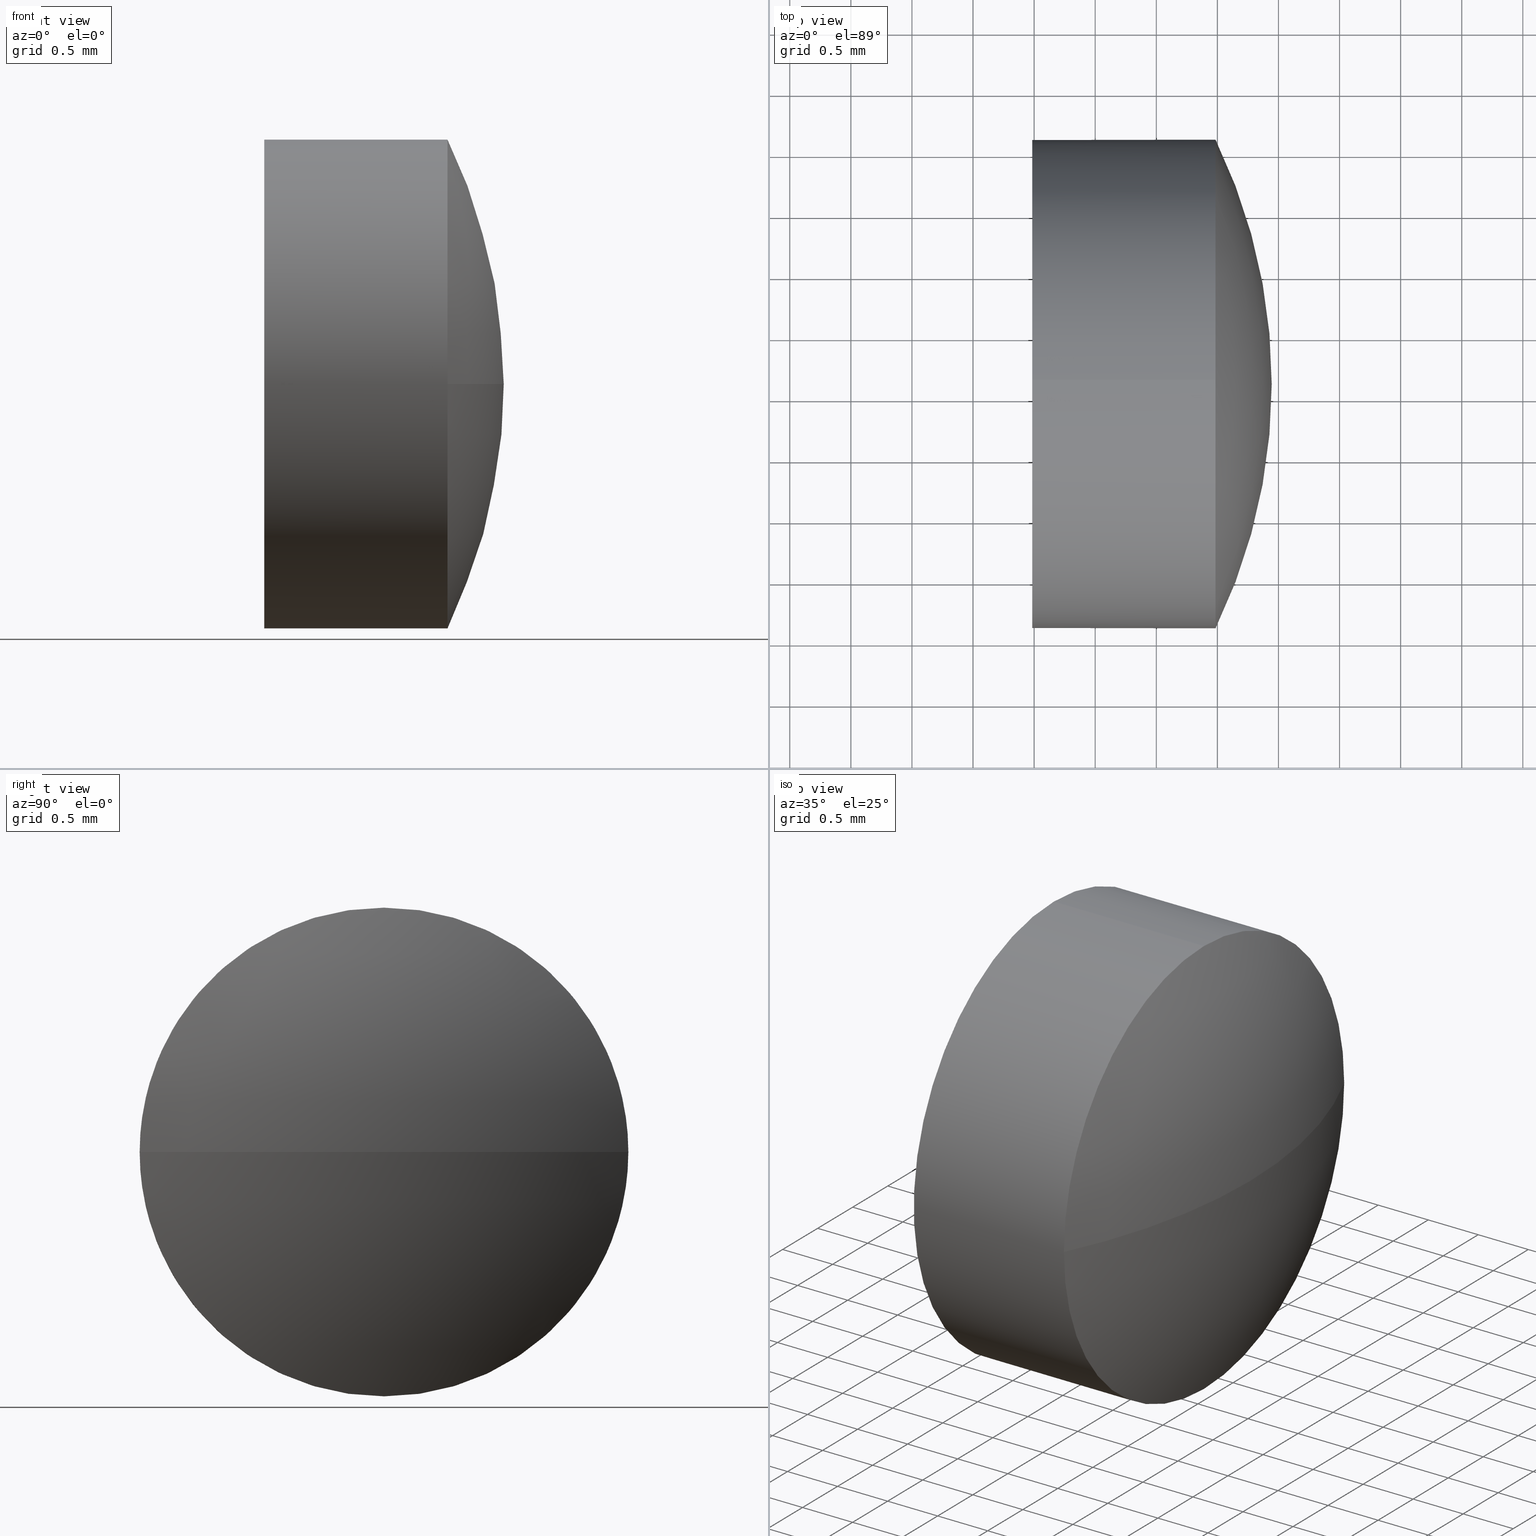
[diagram: canonical four-view strip — front | top / right | iso, engineering-drawing reading convention]
A machine part, canonical four-view strip (front | top / right | iso — engineering-drawing reading convention). The complete STEP part file that produces these views, byte-faithful:
ISO-10303-21;
HEADER;
FILE_DESCRIPTION (( 'STEP AP214' ),
    '1' );
FILE_NAME ('100346.STEP',
    '2019-06-03T02:26:58',
    ( '' ),
    ( '' ),
    'SwSTEP 2.0',
    'SolidWorks 2016',
    '' );
FILE_SCHEMA (( 'AUTOMOTIVE_DESIGN' ));
ENDSEC;

DATA;
#1 = APPLICATION_PROTOCOL_DEFINITION ( 'draft international standard', 'automotive_design', 1998, #38 ) ;
#2 = ORIENTED_EDGE ( 'NONE', *, *, #46, .T. ) ;
#3 = ADVANCED_FACE ( 'NONE', ( #80 ), #158, .T. ) ;
#4 = AXIS2_PLACEMENT_3D ( 'NONE', #156, #8, #122 ) ;
#5 = ORIENTED_EDGE ( 'NONE', *, *, #79, .F. ) ;
#6 = EDGE_CURVE ( 'NONE', #140, #18, #74, .T. ) ;
#7 = EDGE_LOOP ( 'NONE', ( #161, #2 ) ) ;
#8 = DIRECTION ( 'NONE',  ( -1.000000000000000000, -0.0000000000000000000, -0.0000000000000000000 ) ) ;
#9 = VERTEX_POINT ( 'NONE', #179 ) ;
#10 = FILL_AREA_STYLE ('',( #40 ) ) ;
#11 =( LENGTH_UNIT ( ) NAMED_UNIT ( * ) SI_UNIT ( .MILLI., .METRE. ) );
#12 = CARTESIAN_POINT ( 'NONE',  ( 418.9449177201196300, 167.1088649650341700, 0.0000000000000000000 ) ) ;
#13 =( LENGTH_UNIT ( ) NAMED_UNIT ( * ) SI_UNIT ( .MILLI., .METRE. ) );
#14 = PRODUCT_DEFINITION_CONTEXT ( 'detailed design', #38, 'design' ) ;
#15 = AXIS2_PLACEMENT_3D ( 'NONE', #68, #159, #69 ) ;
#16 = CIRCLE ( 'NONE', #134, 2.000000000000001800 ) ;
#17 = PRODUCT_DEFINITION_SHAPE ( 'NONE', 'NONE',  #43 ) ;
#18 = VERTEX_POINT ( 'NONE', #152 ) ;
#19 = SPHERICAL_SURFACE ( 'NONE', #15, 4.577826086956557500 ) ;
#20 = CARTESIAN_POINT ( 'NONE',  ( 414.3670916331631100, 167.1088649650341700, 0.0000000000000000000 ) ) ;
#21 = DIRECTION ( 'NONE',  ( 0.0000000000000000000, 0.0000000000000000000, 1.000000000000000000 ) ) ;
#22 = CARTESIAN_POINT ( 'NONE',  ( 414.3670916331631100, 167.1088649650341700, 0.0000000000000000000 ) ) ;
#23 = STYLED_ITEM ( 'NONE', ( #56 ), #150 ) ;
#24 = PRODUCT ( '100346', '100346', '', ( #127 ) ) ;
#25 =( NAMED_UNIT ( * ) PLANE_ANGLE_UNIT ( ) SI_UNIT ( $, .RADIAN. ) );
#26 = SURFACE_SIDE_STYLE ('',( #186 ) ) ;
#27 =( GEOMETRIC_REPRESENTATION_CONTEXT ( 3 ) GLOBAL_UNCERTAINTY_ASSIGNED_CONTEXT ( ( #57 ) ) GLOBAL_UNIT_ASSIGNED_CONTEXT ( ( #11, #129, #84 ) ) REPRESENTATION_CONTEXT ( 'NONE', 'WORKASPACE' ) );
#28 = DIRECTION ( 'NONE',  ( -1.000000000000000000, -0.0000000000000000000, -0.0000000000000000000 ) ) ;
#29 = ORIENTED_EDGE ( 'NONE', *, *, #121, .F. ) ;
#30 = AXIS2_PLACEMENT_3D ( 'NONE', #22, #49, #62 ) ;
#31 = EDGE_LOOP ( 'NONE', ( #105, #67, #29, #91 ) ) ;
#32 = CARTESIAN_POINT ( 'NONE',  ( 416.9849177201196500, 167.1088649650342000, 2.000000000000001800 ) ) ;
#33 = DIRECTION ( 'NONE',  ( -1.000000000000000000, -0.0000000000000000000, -0.0000000000000000000 ) ) ;
#34 = CARTESIAN_POINT ( 'NONE',  ( 416.9849177201196500, 167.1088649650342000, 0.0000000000000000000 ) ) ;
#35 = ORIENTED_EDGE ( 'NONE', *, *, #45, .T. ) ;
#36 = APPLICATION_PROTOCOL_DEFINITION ( 'draft international standard', 'automotive_design', 1998, #145 ) ;
#37 = DIRECTION ( 'NONE',  ( 0.0000000000000000000, 1.224646799147353200E-016, -1.000000000000000000 ) ) ;
#38 = APPLICATION_CONTEXT ( 'automotive_design' ) ;
#39 = CIRCLE ( 'NONE', #73, 4.577826086956560100 ) ;
#40 = FILL_AREA_STYLE_COLOUR ( '', #154 ) ;
#41 = AXIS2_PLACEMENT_3D ( 'NONE', #63, #168, #120 ) ;
#42 = CLOSED_SHELL ( 'NONE', ( #98, #3, #130, #162, #111 ) ) ;
#43 = PRODUCT_DEFINITION ( 'δ֪', '', #117, #14 ) ;
#44 = ORIENTED_EDGE ( 'NONE', *, *, #102, .F. ) ;
#45 = EDGE_CURVE ( 'NONE', #9, #140, #142, .T. ) ;
#46 = EDGE_CURVE ( 'NONE', #18, #78, #137, .T. ) ;
#47 = EDGE_LOOP ( 'NONE', ( #35, #146, #5, #163, #181 ) ) ;
#48 = CARTESIAN_POINT ( 'NONE',  ( 416.5568110260729800, 167.1088649650342000, -2.000000000000001800 ) ) ;
#49 = DIRECTION ( 'NONE',  ( -0.0000000000000000000, 0.0000000000000000000, 1.000000000000000000 ) ) ;
#50 = CARTESIAN_POINT ( 'NONE',  ( 418.4849177201196500, 167.1088649650342000, 0.0000000000000000000 ) ) ;
#51 = VECTOR ( 'NONE', #178, 1000.000000000000000 ) ;
#52 = DIRECTION ( 'NONE',  ( 0.0000000000000000000, 0.0000000000000000000, 1.000000000000000000 ) ) ;
#53 = MECHANICAL_DESIGN_GEOMETRIC_PRESENTATION_REPRESENTATION (  '', ( #104 ), #155 ) ;
#54 = VECTOR ( 'NONE', #107, 1000.000000000000000 ) ;
#55 =( NAMED_UNIT ( * ) SI_UNIT ( $, .STERADIAN. ) SOLID_ANGLE_UNIT ( ) );
#56 = PRESENTATION_STYLE_ASSIGNMENT (( #97 ) ) ;
#57 = UNCERTAINTY_MEASURE_WITH_UNIT (LENGTH_MEASURE( 1.000000000000000100E-005 ), #11, 'distance_accuracy_value', 'NONE');
#58 = CARTESIAN_POINT ( 'NONE',  ( 416.5568110260729800, 167.1088649650342000, 0.0000000000000000000 ) ) ;
#59 = CIRCLE ( 'NONE', #30, 4.577826086956560100 ) ;
#60 = PRESENTATION_LAYER_ASSIGNMENT (  '', '', ( #23 ) ) ;
#61 = FACE_OUTER_BOUND ( 'NONE', #7, .T. ) ;
#62 = DIRECTION ( 'NONE',  ( 1.000000000000000000, 0.0000000000000000000, 0.0000000000000000000 ) ) ;
#63 = CARTESIAN_POINT ( 'NONE',  ( 416.9849177201196500, 167.1088649650342000, 0.0000000000000000000 ) ) ;
#64 = AXIS2_PLACEMENT_3D ( 'NONE', #123, #169, #52 ) ;
#65 = DIRECTION ( 'NONE',  ( -1.000000000000000000, -0.0000000000000000000, -0.0000000000000000000 ) ) ;
#66 = DIRECTION ( 'NONE',  ( 0.0000000000000000000, 0.0000000000000000000, 1.000000000000000000 ) ) ;
#67 = ORIENTED_EDGE ( 'NONE', *, *, #102, .T. ) ;
#68 = CARTESIAN_POINT ( 'NONE',  ( 414.3670916331631100, 167.1088649650341700, 0.0000000000000000000 ) ) ;
#69 = DIRECTION ( 'NONE',  ( 0.0000000000000000000, 1.000000000000000000, 0.0000000000000000000 ) ) ;
#70 = EDGE_CURVE ( 'NONE', #140, #157, #16, .T. ) ;
#71 = ORIENTED_EDGE ( 'NONE', *, *, #175, .T. ) ;
#72 = PRESENTATION_STYLE_ASSIGNMENT (( #95 ) ) ;
#73 = AXIS2_PLACEMENT_3D ( 'NONE', #172, #37, #109 ) ;
#74 = LINE ( 'NONE', #48, #51 ) ;
#75 = DIRECTION ( 'NONE',  ( 0.0000000000000000000, 1.000000000000000000, 0.0000000000000000000 ) ) ;
#76 = ORIENTED_EDGE ( 'NONE', *, *, #46, .F. ) ;
#77 = SURFACE_STYLE_FILL_AREA ( #128 ) ;
#78 = VERTEX_POINT ( 'NONE', #32 ) ;
#79 = EDGE_CURVE ( 'NONE', #78, #18, #125, .T. ) ;
#80 = FACE_OUTER_BOUND ( 'NONE', #164, .T. ) ;
#81 = SURFACE_SIDE_STYLE ('',( #77 ) ) ;
#82 = DIRECTION ( 'NONE',  ( 0.0000000000000000000, 0.0000000000000000000, 1.000000000000000000 ) ) ;
#83 = AXIS2_PLACEMENT_3D ( 'NONE', #89, #138, #118 ) ;
#84 =( NAMED_UNIT ( * ) SI_UNIT ( $, .STERADIAN. ) SOLID_ANGLE_UNIT ( ) );
#85 = CIRCLE ( 'NONE', #4, 2.000000000000001800 ) ;
#86 = AXIS2_PLACEMENT_3D ( 'NONE', #20, #135, #75 ) ;
#87 = AXIS2_PLACEMENT_3D ( 'NONE', #124, #108, #96 ) ;
#88 = CYLINDRICAL_SURFACE ( 'NONE', #64, 2.000000000000001800 ) ;
#89 = CARTESIAN_POINT ( 'NONE',  ( 418.4849177201196500, 167.1088649650342000, 0.0000000000000000000 ) ) ;
#90 = CARTESIAN_POINT ( 'NONE',  ( 416.9849177201196500, 167.1088649650342000, 0.0000000000000000000 ) ) ;
#91 = ORIENTED_EDGE ( 'NONE', *, *, #92, .F. ) ;
#92 = EDGE_CURVE ( 'NONE', #157, #114, #85, .T. ) ;
#93 = DIRECTION ( 'NONE',  ( 0.0000000000000000000, 0.0000000000000000000, 1.000000000000000000 ) ) ;
#94 = FACE_OUTER_BOUND ( 'NONE', #113, .T. ) ;
#95 = SURFACE_STYLE_USAGE ( .BOTH. , #26 ) ;
#96 = DIRECTION ( 'NONE',  ( 1.000000000000000000, 0.0000000000000000000, 0.0000000000000000000 ) ) ;
#97 = SURFACE_STYLE_USAGE ( .BOTH. , #81 ) ;
#98 = ADVANCED_FACE ( 'NONE', ( #100 ), #88, .T. ) ;
#99 = AXIS2_PLACEMENT_3D ( 'NONE', #119, #33, #82 ) ;
#100 = FACE_OUTER_BOUND ( 'NONE', #47, .T. ) ;
#101 = ORIENTED_EDGE ( 'NONE', *, *, #92, .T. ) ;
#102 = EDGE_CURVE ( 'NONE', #177, #9, #59, .T. ) ;
#103 = DIRECTION ( 'NONE',  ( -1.000000000000000000, -0.0000000000000000000, -0.0000000000000000000 ) ) ;
#104 = STYLED_ITEM ( 'NONE', ( #72 ), #182 ) ;
#105 = ORIENTED_EDGE ( 'NONE', *, *, #184, .F. ) ;
#106 = CARTESIAN_POINT ( 'NONE',  ( 416.5568110260729800, 167.1088649650342000, 2.000000000000001800 ) ) ;
#107 = DIRECTION ( 'NONE',  ( -1.000000000000000000, -0.0000000000000000000, -0.0000000000000000000 ) ) ;
#108 = DIRECTION ( 'NONE',  ( 0.0000000000000000000, 0.0000000000000000000, 1.000000000000000000 ) ) ;
#109 = DIRECTION ( 'NONE',  ( 0.0000000000000000000, 1.000000000000000000, 1.224646799147352500E-016 ) ) ;
#110 = AXIS2_PLACEMENT_3D ( 'NONE', #90, #180, #153 ) ;
#111 = ADVANCED_FACE ( 'NONE', ( #61 ), #136, .F. ) ;
#112 = COLOUR_RGB ( '',1.000000000000000000, 1.000000000000000000, 1.000000000000000000 ) ;
#113 = EDGE_LOOP ( 'NONE', ( #165, #185, #101, #71, #76 ) ) ;
#114 = VERTEX_POINT ( 'NONE', #141 ) ;
#115 = MECHANICAL_DESIGN_GEOMETRIC_PRESENTATION_REPRESENTATION (  '', ( #23 ), #27 ) ;
#116 = CYLINDRICAL_SURFACE ( 'NONE', #166, 2.000000000000001800 ) ;
#117 = PRODUCT_DEFINITION_FORMATION_WITH_SPECIFIED_SOURCE ( '�κ�', '', #24, .NOT_KNOWN. ) ;
#118 = DIRECTION ( 'NONE',  ( 0.0000000000000000000, 0.0000000000000000000, 1.000000000000000000 ) ) ;
#119 = CARTESIAN_POINT ( 'NONE',  ( 418.4849177201196500, 167.1088649650342000, 0.0000000000000000000 ) ) ;
#120 = DIRECTION ( 'NONE',  ( 0.0000000000000000000, 0.0000000000000000000, -1.000000000000000000 ) ) ;
#121 = EDGE_CURVE ( 'NONE', #114, #9, #132, .T. ) ;
#122 = DIRECTION ( 'NONE',  ( 0.0000000000000000000, 0.0000000000000000000, 1.000000000000000000 ) ) ;
#123 = CARTESIAN_POINT ( 'NONE',  ( 416.5568110260729800, 167.1088649650342000, 0.0000000000000000000 ) ) ;
#124 = CARTESIAN_POINT ( 'NONE',  ( 0.0000000000000000000, 0.0000000000000000000, 0.0000000000000000000 ) ) ;
#125 = CIRCLE ( 'NONE', #174, 2.000000000000001800 ) ;
#126 = FILL_AREA_STYLE_COLOUR ( '', #112 ) ;
#127 = PRODUCT_CONTEXT ( 'NONE', #145, 'mechanical' ) ;
#128 = FILL_AREA_STYLE ('',( #126 ) ) ;
#129 =( NAMED_UNIT ( * ) PLANE_ANGLE_UNIT ( ) SI_UNIT ( $, .RADIAN. ) );
#130 = ADVANCED_FACE ( 'NONE', ( #167 ), #19, .T. ) ;
#131 = PRODUCT_RELATED_PRODUCT_CATEGORY ( 'part', '', ( #24 ) ) ;
#132 = CIRCLE ( 'NONE', #99, 2.000000000000001800 ) ;
#133 = ORIENTED_EDGE ( 'NONE', *, *, #70, .F. ) ;
#134 = AXIS2_PLACEMENT_3D ( 'NONE', #50, #103, #21 ) ;
#135 = DIRECTION ( 'NONE',  ( -0.0000000000000000000, 0.0000000000000000000, -1.000000000000000000 ) ) ;
#136 = PLANE ( 'NONE',  #41 ) ;
#137 = CIRCLE ( 'NONE', #110, 2.000000000000001800 ) ;
#138 = DIRECTION ( 'NONE',  ( -1.000000000000000000, -0.0000000000000000000, -0.0000000000000000000 ) ) ;
#139 = UNCERTAINTY_MEASURE_WITH_UNIT (LENGTH_MEASURE( 1.000000000000000100E-005 ), #144, 'distance_accuracy_value', 'NONE');
#140 = VERTEX_POINT ( 'NONE', #160 ) ;
#141 = CARTESIAN_POINT ( 'NONE',  ( 418.4849177201196500, 167.1088649650342000, 2.000000000000001800 ) ) ;
#142 = CIRCLE ( 'NONE', #83, 2.000000000000001800 ) ;
#143 = CARTESIAN_POINT ( 'NONE',  ( 418.4849177201196500, 165.1088649650341400, -2.449293598294713300E-016 ) ) ;
#144 =( LENGTH_UNIT ( ) NAMED_UNIT ( * ) SI_UNIT ( .MILLI., .METRE. ) );
#145 = APPLICATION_CONTEXT ( 'automotive_design' ) ;
#146 = ORIENTED_EDGE ( 'NONE', *, *, #6, .T. ) ;
#147 = PRESENTATION_LAYER_ASSIGNMENT (  '', '', ( #104 ) ) ;
#148 = SHAPE_DEFINITION_REPRESENTATION ( #17, #150 ) ;
#149 = ORIENTED_EDGE ( 'NONE', *, *, #184, .T. ) ;
#150 = ADVANCED_BREP_SHAPE_REPRESENTATION ( '100346', ( #182, #87 ), #183 ) ;
#151 = ORIENTED_EDGE ( 'NONE', *, *, #45, .F. ) ;
#152 = CARTESIAN_POINT ( 'NONE',  ( 416.9849177201196500, 167.1088649650342000, -2.000000000000001800 ) ) ;
#153 = DIRECTION ( 'NONE',  ( 0.0000000000000000000, 0.0000000000000000000, 1.000000000000000000 ) ) ;
#154 = COLOUR_RGB ( '',1.000000000000000000, 1.000000000000000000, 1.000000000000000000 ) ;
#155 =( GEOMETRIC_REPRESENTATION_CONTEXT ( 3 ) GLOBAL_UNCERTAINTY_ASSIGNED_CONTEXT ( ( #176 ) ) GLOBAL_UNIT_ASSIGNED_CONTEXT ( ( #13, #25, #55 ) ) REPRESENTATION_CONTEXT ( 'NONE', 'WORKASPACE' ) );
#156 = CARTESIAN_POINT ( 'NONE',  ( 418.4849177201196500, 167.1088649650342000, 0.0000000000000000000 ) ) ;
#157 = VERTEX_POINT ( 'NONE', #143 ) ;
#158 = SPHERICAL_SURFACE ( 'NONE', #86, 4.577826086956557500 ) ;
#159 = DIRECTION ( 'NONE',  ( -0.0000000000000000000, 0.0000000000000000000, -1.000000000000000000 ) ) ;
#160 = CARTESIAN_POINT ( 'NONE',  ( 418.4849177201196500, 167.1088649650342000, -2.000000000000001800 ) ) ;
#161 = ORIENTED_EDGE ( 'NONE', *, *, #79, .T. ) ;
#162 = ADVANCED_FACE ( 'NONE', ( #94 ), #116, .T. ) ;
#163 = ORIENTED_EDGE ( 'NONE', *, *, #175, .F. ) ;
#164 = EDGE_LOOP ( 'NONE', ( #44, #149, #133, #151 ) ) ;
#165 = ORIENTED_EDGE ( 'NONE', *, *, #6, .F. ) ;
#166 = AXIS2_PLACEMENT_3D ( 'NONE', #58, #28, #66 ) ;
#167 = FACE_OUTER_BOUND ( 'NONE', #31, .T. ) ;
#168 = DIRECTION ( 'NONE',  ( 1.000000000000000000, 0.0000000000000000000, 0.0000000000000000000 ) ) ;
#169 = DIRECTION ( 'NONE',  ( -1.000000000000000000, -0.0000000000000000000, -0.0000000000000000000 ) ) ;
#170 = LINE ( 'NONE', #106, #54 ) ;
#171 =( NAMED_UNIT ( * ) SI_UNIT ( $, .STERADIAN. ) SOLID_ANGLE_UNIT ( ) );
#172 = CARTESIAN_POINT ( 'NONE',  ( 414.3670916331631100, 167.1088649650341700, 0.0000000000000000000 ) ) ;
#173 =( NAMED_UNIT ( * ) PLANE_ANGLE_UNIT ( ) SI_UNIT ( $, .RADIAN. ) );
#174 = AXIS2_PLACEMENT_3D ( 'NONE', #34, #65, #93 ) ;
#175 = EDGE_CURVE ( 'NONE', #114, #78, #170, .T. ) ;
#176 = UNCERTAINTY_MEASURE_WITH_UNIT (LENGTH_MEASURE( 1.000000000000000100E-005 ), #13, 'distance_accuracy_value', 'NONE');
#177 = VERTEX_POINT ( 'NONE', #12 ) ;
#178 = DIRECTION ( 'NONE',  ( -1.000000000000000000, -0.0000000000000000000, -0.0000000000000000000 ) ) ;
#179 = CARTESIAN_POINT ( 'NONE',  ( 418.4849177201196500, 169.1088649650342000, 0.0000000000000000000 ) ) ;
#180 = DIRECTION ( 'NONE',  ( -1.000000000000000000, -0.0000000000000000000, -0.0000000000000000000 ) ) ;
#181 = ORIENTED_EDGE ( 'NONE', *, *, #121, .T. ) ;
#182 = MANIFOLD_SOLID_BREP ( '��ת1', #42 ) ;
#183 =( GEOMETRIC_REPRESENTATION_CONTEXT ( 3 ) GLOBAL_UNCERTAINTY_ASSIGNED_CONTEXT ( ( #139 ) ) GLOBAL_UNIT_ASSIGNED_CONTEXT ( ( #144, #173, #171 ) ) REPRESENTATION_CONTEXT ( 'NONE', 'WORKASPACE' ) );
#184 = EDGE_CURVE ( 'NONE', #177, #157, #39, .T. ) ;
#185 = ORIENTED_EDGE ( 'NONE', *, *, #70, .T. ) ;
#186 = SURFACE_STYLE_FILL_AREA ( #10 ) ;
ENDSEC;
END-ISO-10303-21;
